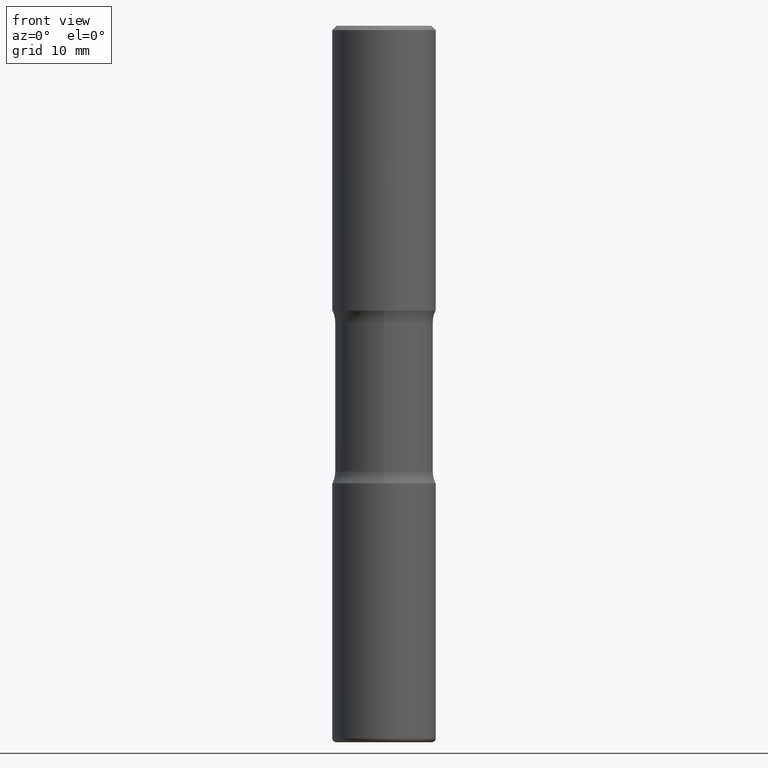
[diagram: clean part render]
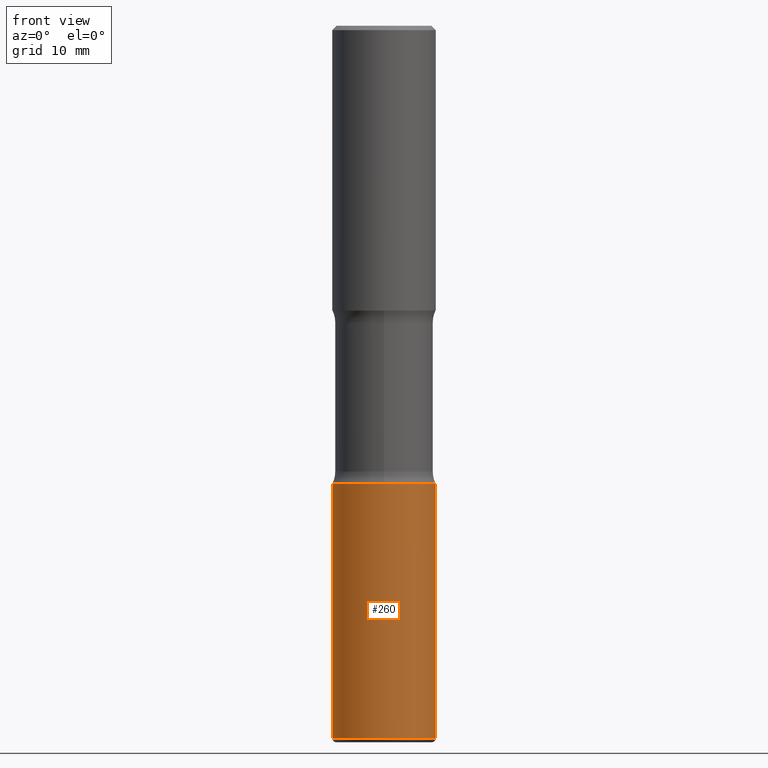
[diagram: same view with one face highlighted and labeled with its STEP entity id]
A machine part, front view. The second image highlights one B-rep face of the part: STEP entity #260.
In plain terms, the highlighted cylindrical surface (partial cylindrical patch) has radius 5.9995 mm, axis along (-0, 0, 1).
Its self-contained STEP definition (entity closure, byte-faithful):
#22 = CIRCLE ( 'NONE', #349, 0.2362000000000002431 ) ;
#44 = AXIS2_PLACEMENT_3D ( 'NONE', #96, #470, #431 ) ;
#49 = CARTESIAN_POINT ( 'NONE',  ( 7.942149041847466380E-29, -1.133928394416088156E-14, -3.247699999999999143 ) ) ;
#59 = DIRECTION ( 'NONE',  ( 1.000000000000000000, -6.982962677686265922E-15, 0.000000000000000000 ) ) ;
#67 = EDGE_CURVE ( 'NONE', #353, #511, #22, .T. ) ;
#69 = FACE_OUTER_BOUND ( 'NONE', #216, .T. ) ;
#96 = CARTESIAN_POINT ( 'NONE',  ( 0.000000000000000000, 0.000000000000000000, 0.000000000000000000 ) ) ;
#141 = CARTESIAN_POINT ( 'NONE',  ( 5.102715210985905155E-29, -7.285324961630105839E-15, -2.086599999999999344 ) ) ;
#145 = CARTESIAN_POINT ( 'NONE',  ( -0.2362000000000002431, 1.678301941865358366E-15, -1.161852468318209878E-29 ) ) ;
#173 = DIRECTION ( 'NONE',  ( -2.445468806185136597E-29, 3.491481338843145583E-15, 1.000000000000000000 ) ) ;
#186 = CARTESIAN_POINT ( 'NONE',  ( 0.2362000000000002431, -8.934700746099602364E-15, -2.086599999999999344 ) ) ;
#198 = CARTESIAN_POINT ( 'NONE',  ( 0.2362000000000002431, -1.649375784469497906E-15, 1.151752954443001209E-29 ) ) ;
#216 = EDGE_LOOP ( 'NONE', ( #344, #480, #222, #217 ) ) ;
#217 = ORIENTED_EDGE ( 'NONE', *, *, #67, .F. ) ;
#222 = ORIENTED_EDGE ( 'NONE', *, *, #457, .T. ) ;
#227 = VECTOR ( 'NONE', #411, 39.37007874015748143 ) ;
#233 = LINE ( 'NONE', #145, #227 ) ;
#253 = CARTESIAN_POINT ( 'NONE',  ( 0.2362000000000002709, -1.298865972863037967E-14, -3.247699999999999143 ) ) ;
#260 = ADVANCED_FACE ( 'NONE', ( #69 ), #380, .T. ) ;
#269 = VERTEX_POINT ( 'NONE', #386 ) ;
#279 = DIRECTION ( 'NONE',  ( -2.445468806185136597E-29, 3.491481338843145583E-15, 1.000000000000000000 ) ) ;
#312 = DIRECTION ( 'NONE',  ( 1.000000000000000000, -6.982962677686265922E-15, 0.000000000000000000 ) ) ;
#332 = DIRECTION ( 'NONE',  ( -2.445468806185136877E-29, 3.491481338843145188E-15, 1.000000000000000000 ) ) ;
#339 = EDGE_CURVE ( 'NONE', #269, #341, #356, .T. ) ;
#340 = CARTESIAN_POINT ( 'NONE',  ( -0.2362000000000002431, -7.634002511030135730E-15, -2.086599999999999344 ) ) ;
#341 = VERTEX_POINT ( 'NONE', #253 ) ;
#344 = ORIENTED_EDGE ( 'NONE', *, *, #460, .F. ) ;
#349 = AXIS2_PLACEMENT_3D ( 'NONE', #141, #279, #59 ) ;
#353 = VERTEX_POINT ( 'NONE', #340 ) ;
#356 = CIRCLE ( 'NONE', #506, 0.2362000000000002431 ) ;
#367 = LINE ( 'NONE', #198, #559 ) ;
#380 = CYLINDRICAL_SURFACE ( 'NONE', #44, 0.2362000000000002431 ) ;
#386 = CARTESIAN_POINT ( 'NONE',  ( -0.2362000000000002709, -9.660982002295522015E-15, -3.247699999999999143 ) ) ;
#411 = DIRECTION ( 'NONE',  ( -2.445468806185136877E-29, 3.491481338843145188E-15, 1.000000000000000000 ) ) ;
#431 = DIRECTION ( 'NONE',  ( 1.000000000000000000, -6.982962677686266711E-15, 4.876176775795935793E-29 ) ) ;
#457 = EDGE_CURVE ( 'NONE', #341, #511, #367, .T. ) ;
#460 = EDGE_CURVE ( 'NONE', #269, #353, #233, .T. ) ;
#470 = DIRECTION ( 'NONE',  ( -2.445468806185136597E-29, 3.491481338843145583E-15, 1.000000000000000000 ) ) ;
#480 = ORIENTED_EDGE ( 'NONE', *, *, #339, .T. ) ;
#506 = AXIS2_PLACEMENT_3D ( 'NONE', #49, #173, #312 ) ;
#511 = VERTEX_POINT ( 'NONE', #186 ) ;
#559 = VECTOR ( 'NONE', #332, 39.37007874015748143 ) ;